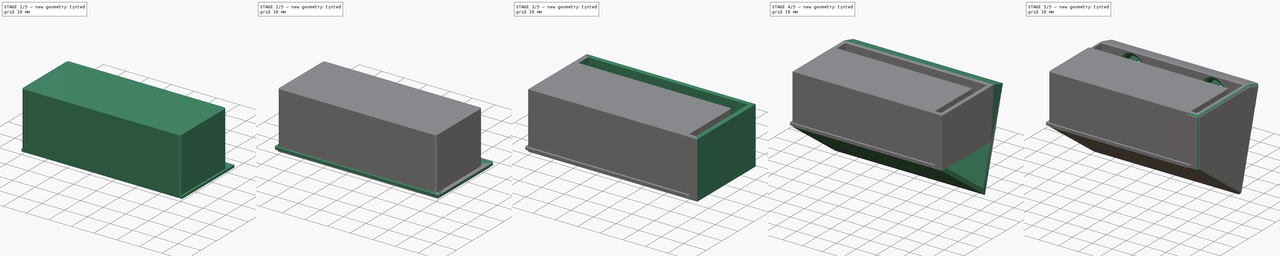
[diagram: build sequence overview — one tinted view per stage of 5, left to right]
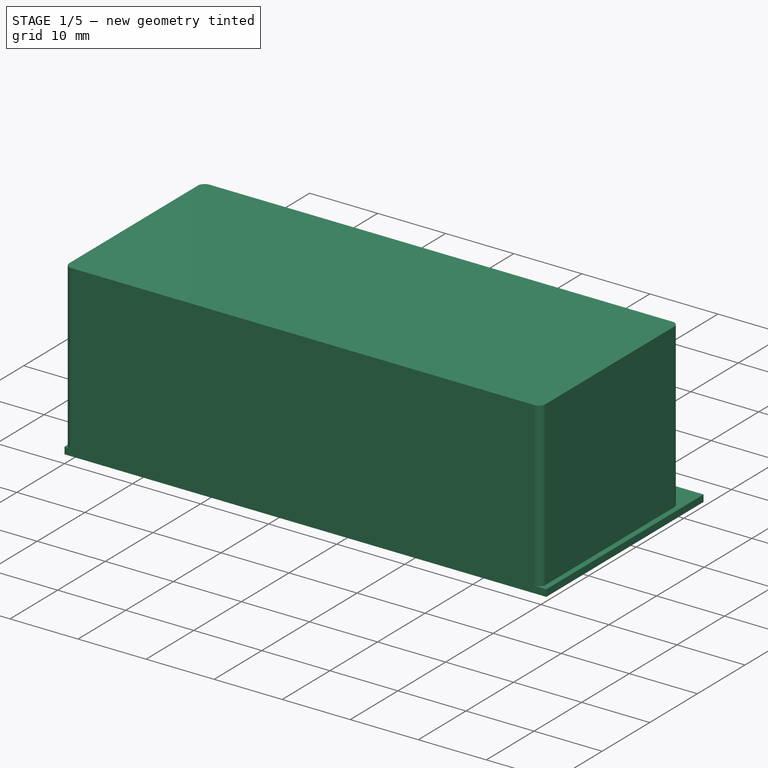
[diagram: stage 1 of 5 — iso view after this stage's code; geometry added in this stage tinted green]
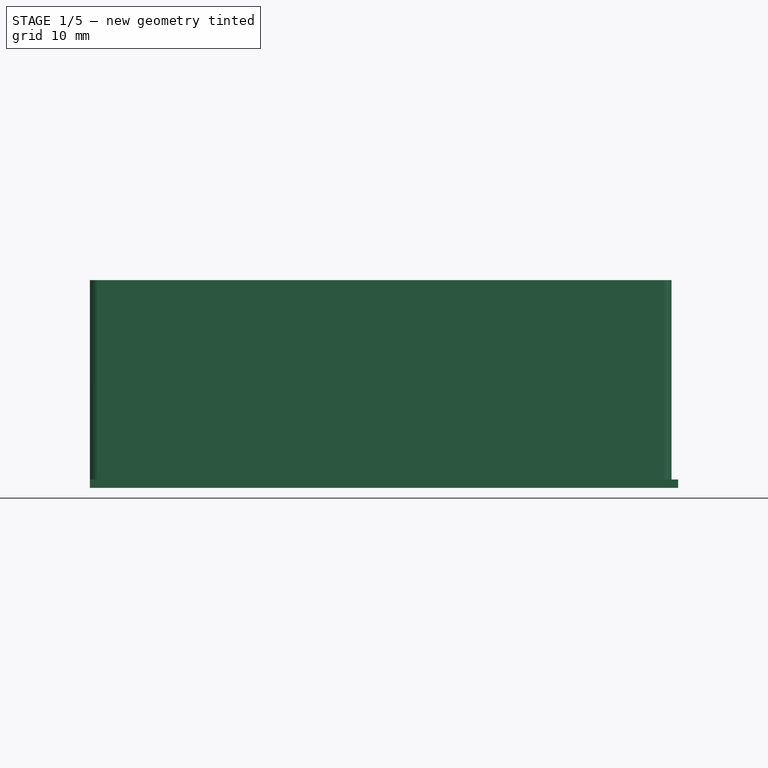
[diagram: stage 1 of 5 — front view after this stage's code; geometry added in this stage tinted green]
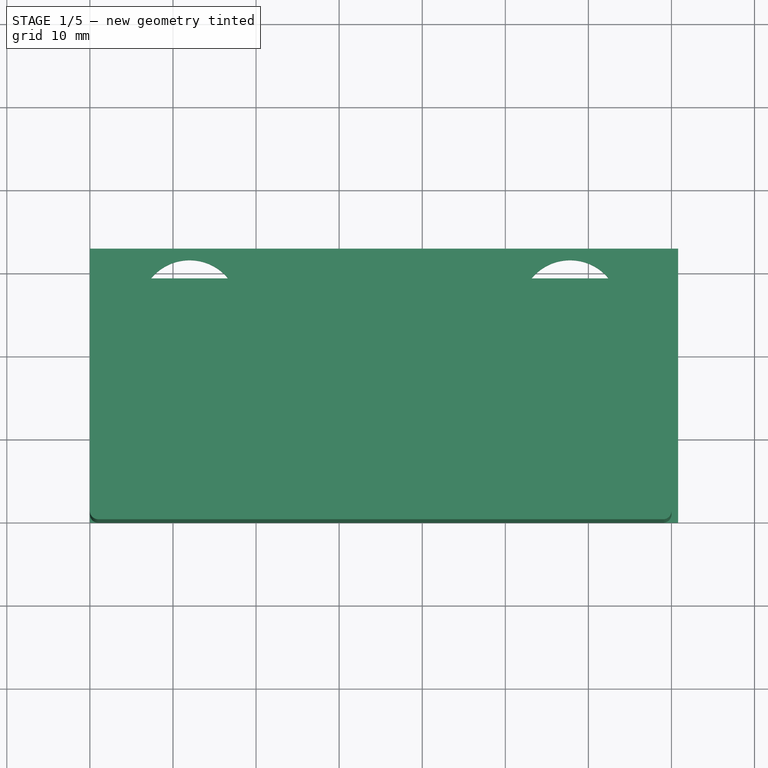
[diagram: stage 1 of 5 — top view after this stage's code; geometry added in this stage tinted green]
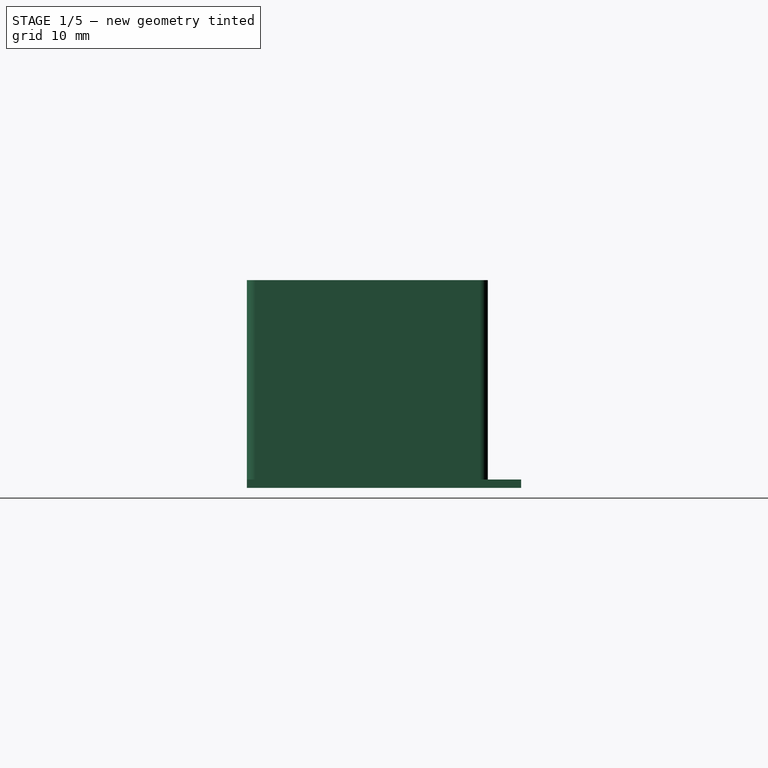
[diagram: stage 1 of 5 — right view after this stage's code; geometry added in this stage tinted green]
FCSTD DOCUMENT  (FreeCAD 1.1R42180 (Git))
Label: Panel
License: All rights reserved
LicenseURL: https://en.wikipedia.org/wiki/All_rights_reserved
objects: Sketcher::SketchObject×9, PartDesign::Pad×8, PartDesign::Chamfer×5, App::Point×4, PartDesign::Pocket×4, PartDesign::Body×3, PartDesign::Fillet×2, App::VarSet×1, Image::ImagePlane×1, App::Part×1
note: 78 computed .brp shape members not serialized (recipe doc carries the construction recipe); baked Part::Feature solids carry a one-line shape summary decoded from their .brp

FEATURE [App::Point] Origin005
  Role = Origin
FEATURE [Sketcher::SketchObject] Sketch005
  ArcFitTolerance = 1e-06
  AttachmentSupport = -> [Origin004]
  ExternalTypes = [0]
  FullyConstrained = true
  MakeInternals = false
  MapMode = 5
  sketch-geometry (11):
    g0: LineSegment StartX=0 StartY=33 StartZ=0 EndX=0 EndY=0 EndZ=0
    g1: LineSegment StartX=0 StartY=0 StartZ=0 EndX=70.8 EndY=0 EndZ=0
    g2: LineSegment StartX=70.8 StartY=0 StartZ=0 EndX=70.8 EndY=33 EndZ=0
    g3: LineSegment StartX=70.8 StartY=33 StartZ=0 EndX=0 EndY=33 EndZ=0
    g4: Circle CenterX=12 CenterY=25.6 CenterZ=0 NormalX=0 NormalY=0 NormalZ=1 AngleXU=0 Radius=6
    g5: Circle CenterX=57.8 CenterY=25.6 CenterZ=0 NormalX=0 NormalY=0 NormalZ=1 AngleXU=0 Radius=6
    g6: Circle CenterX=57.8 CenterY=7.3 CenterZ=0 NormalX=0 NormalY=0 NormalZ=1 AngleXU=0 Radius=6
    g7: LineSegment StartX=23 StartY=25.5 StartZ=0 EndX=23 EndY=11 EndZ=0
    g8: LineSegment StartX=23 StartY=11 StartZ=0 EndX=46.8 EndY=11 EndZ=0
    g9: LineSegment StartX=46.8 StartY=11 StartZ=0 EndX=46.8 EndY=25.5 EndZ=0
    g10: LineSegment StartX=46.8 StartY=25.5 StartZ=0 EndX=23 EndY=25.5 EndZ=0
  constraints (32):
    c: Coincident(g0,g1)
    c: Coincident(g1,g2)
    c: Coincident(g2,g3)
    c: Coincident(g3,g0)
    c: Vertical(g0)
    c: Vertical(g2)
    c: Horizontal(g1)
    c: Horizontal(g3)
    c: DistanceX(g3,g3) = 70.8
    c: DistanceY(g0,g0) = 33
    c: Coincident(g7,g8)
    c: Coincident(g8,g9)
    c: Coincident(g9,g10)
    c: Coincident(g10,g7)
    c: Vertical(g7)
    c: Vertical(g9)
    c: Horizontal(g8)
    c: Horizontal(g10)
    c: Diameter(g4) = 12
    c: Equal(g4,g5)
    c: Equal(g5,g6)
    c: Horizontal(g4,g5)
    c: Vertical(g5,g6)
    c: Distance(g4,g0) = 6
    c: Distance(g5,g2) = 7
    c: Distance(g5,g3) = 1.4
    c: Distance(g6,g1) = 1.3
    c: Distance(g3,g10) = 7.5
    c: Distance(g1,g8) = 11
    c: Distance(g2,g9) = 24
    c: Distance(g0,g7) = 23
    c: Coincident(g0,g-1)
FEATURE [PartDesign::Pad] Pad004
  Direction = (0,0,1)
  Length = 1
  Length2 = 10
  Profile = -> Sketch005
  ReferenceAxis = -> Sketch005 [N_Axis]
  Refine = true
  Suppressed = false
  Type = 0
FEATURE [PartDesign::Body] Body001  label="Toppdeksel"
  AllowCompound = true
  Group = -> [Sketch005,Pad004,Sketch007,Pad006,Pocket002,Chamfer002,Chamfer003,Fillet001,Chamfer004]
  Origin = -> Origin004
  Tip = -> Chamfer004
FEATURE [App::Point] Origin007
  Role = Origin
FEATURE [Sketcher::SketchObject] Sketch008
  ArcFitTolerance = 1e-06
  AttachmentSupport = -> [Origin006]
  ExternalTypes = [0]
  FullyConstrained = false
  MakeInternals = false
  MapMode = 5
  sketch-geometry (16):
    g0: LineSegment StartX=1 StartY=5.385e-13 StartZ=0 EndX=69 EndY=5.385e-13 EndZ=0
    g1: LineSegment StartX=70 StartY=1 StartZ=0 EndX=70 EndY=28 EndZ=0
    g2: LineSegment StartX=69 StartY=29 StartZ=0 EndX=1 EndY=29 EndZ=0
    g3: LineSegment StartX=5.385e-13 StartY=28 StartZ=0 EndX=5.385e-13 EndY=1 EndZ=0
    g4: ArcOfCircle CenterX=1 CenterY=28 CenterZ=0 NormalX=0 NormalY=0 NormalZ=1 AngleXU=0 Radius=1 StartAngle=1.5708 EndAngle=3.14159
    g5: GeomPoint [constr] X=0 Y=29 Z=0
    g6: ArcOfCircle CenterX=69 CenterY=28 CenterZ=0 NormalX=0 NormalY=0 NormalZ=1 AngleXU=0 Radius=1 StartAngle=-6.29523e-11 EndAngle=1.5708
    g7: GeomPoint [constr] X=70 Y=29 Z=0
    g8: ArcOfCircle CenterX=69 CenterY=1 CenterZ=0 NormalX=0 NormalY=0 NormalZ=1 AngleXU=0 Radius=1 StartAngle=4.71239 EndAngle=6.28319
    g9: GeomPoint [constr] X=70 Y=0 Z=0
    g10: ArcOfCircle CenterX=1 CenterY=1 CenterZ=0 NormalX=0 NormalY=0 NormalZ=1 AngleXU=0 Radius=1 StartAngle=3.14159 EndAngle=4.71239
    g11: GeomPoint [constr] X=0 Y=0 Z=0
    g12: LineSegment StartX=1.2 StartY=1.2 StartZ=0 EndX=68.8 EndY=1.2 EndZ=0
    g13: LineSegment StartX=68.8 StartY=1.2 StartZ=0 EndX=68.8 EndY=27.8 EndZ=0
    g14: LineSegment StartX=68.8 StartY=27.8 StartZ=0 EndX=1.2 EndY=27.8 EndZ=0
    g15: LineSegment StartX=1.2 StartY=27.8 StartZ=0 EndX=1.2 EndY=1.2 EndZ=0
  constraints (31):
    c: Horizontal(g0)
    c: Horizontal(g2)
    c: Vertical(g1)
    c: Vertical(g3)
    c: Distance(g9,g11) = 70
    c: Distance(g11,g5) = 29
    c: Coincident(g11,g-1)
    c: PointOnObject(g5,g3)
    c: PointOnObject(g5,g2)
    c: Tangent(g3,g4) = -1.5708
    c: Tangent(g2,g4) = -1.5708
    c: PointOnObject(g7,g2)
    c: PointOnObject(g7,g1)
    c: Tangent(g2,g6) = -1.5708
    c: Tangent(g1,g6) = -1.5708
    c: PointOnObject(g9,g1)
    c: PointOnObject(g9,g0)
    c: Tangent(g1,g8) = -1.5708
    c: Tangent(g0,g8) = -1.5708
    c: PointOnObject(g11,g0)
    c: PointOnObject(g11,g3)
    c: Tangent(g0,g10) = -1.5708
    c: Tangent(g3,g10) = -1.5708
    c: Radius(g4) = 1
    c: Equal(g4,g6)
    c: Equal(g6,g8)
    c: Equal(g8,g10)
    c: Coincident(g12,g13)
    c: Coincident(g12,g15)
    c: Coincident(g13,g14)
    c: Coincident(g14,g15)
FEATURE [PartDesign::Pad] Pad007
  Direction = (0,0,1)
  Length = 25
  Length2 = 10
  Profile = -> Sketch008
  ReferenceAxis = -> Sketch008 [N_Axis]
  Refine = true
  Suppressed = false
  Type = 0
FEATURE [PartDesign::Pad] Pad008
  BaseFeature = -> Pad007
  Direction = (0,0,1)
  Length = 1
  Length2 = 10
  Profile = -> Pad007 [Edge16,Edge22,Edge10,Edge13,Edge7,Edge4,Edge24,Edge19]
  Refine = true
  Reversed = true
  Suppressed = false
  Type = 0
FEATURE [Sketcher::SketchObject] Sketch009
  ArcFitTolerance = 1e-06
  AttachmentSupport = -> [Pad008]
  ExternalGeometry = -> [Pad008]
  ExternalTypes = [0,0,0]
  FullyConstrained = true
  MakeInternals = false
  MapMode = 5
  Placement = pos=(5.406e-13,0,0) rot=(0.57735,-0.57735,-0.57735;2.0944rad)
  sketch-geometry (4):
    g0: LineSegment StartX=-25 StartY=0 StartZ=0 EndX=-5 EndY=0 EndZ=0
    g1: LineSegment StartX=-5 StartY=0 StartZ=0 EndX=-5 EndY=20 EndZ=0
    g2: LineSegment StartX=-5 StartY=20 StartZ=0 EndX=-25 EndY=20 EndZ=0
    g3: LineSegment StartX=-25 StartY=20 StartZ=0 EndX=-25 EndY=0 EndZ=0
  constraints (12):
    c: Coincident(g0,g1)
    c: Coincident(g1,g2)
    c: Coincident(g2,g3)
    c: Coincident(g3,g0)
    c: Horizontal(g0)
    c: Horizontal(g2)
    c: Vertical(g1)
    c: Vertical(g3)
    c: PointOnObject(g0,g-1)
    c: Distance(g2,g-3) = 5
    c: Distance(g2,g-5) = 4
    c: Distance(g1,g-4) = 4
FEATURE [PartDesign::Pocket] Pocket003
  BaseFeature = -> Pad008
  Direction = (1,0,0)
  Length = 5
  Length2 = 5
  Profile = -> Sketch009
  ReferenceAxis = -> Sketch009 [N_Axis]
  Refine = true
  Suppressed = false
  Type = 0
FEATURE [PartDesign::Body] Body002  label="Bakdeksel"
  AllowCompound = false
  Group = -> [Sketch008,Pad007,Pad008,Sketch009,Pocket003]
  Origin = -> Origin006
  Tip = -> Pocket003
FEATURE [App::Part] Part
  Group = -> [Body001,Body002]
  Origin = -> Origin
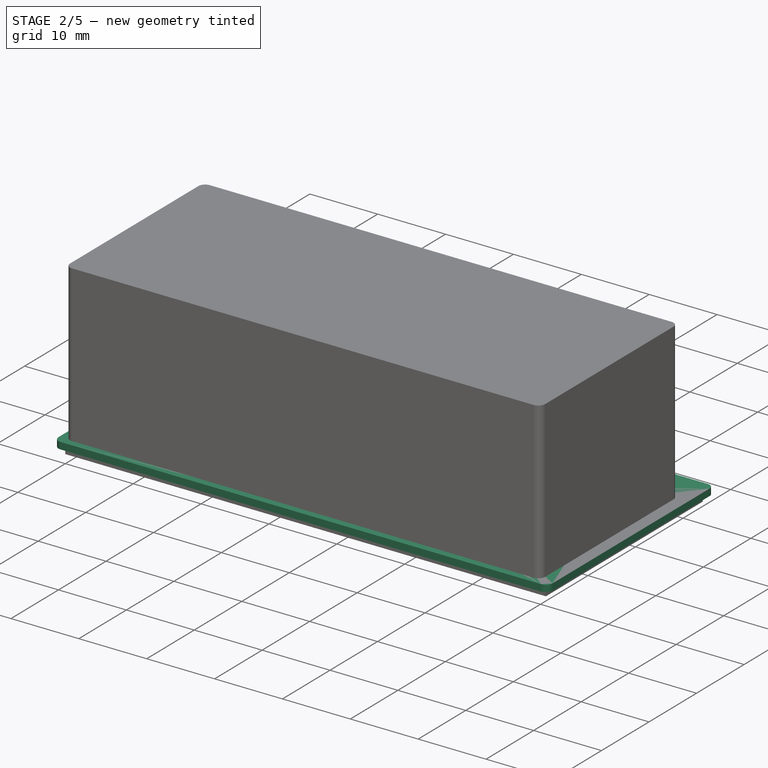
[diagram: stage 2 of 5 — iso view after this stage's code; geometry added in this stage tinted green]
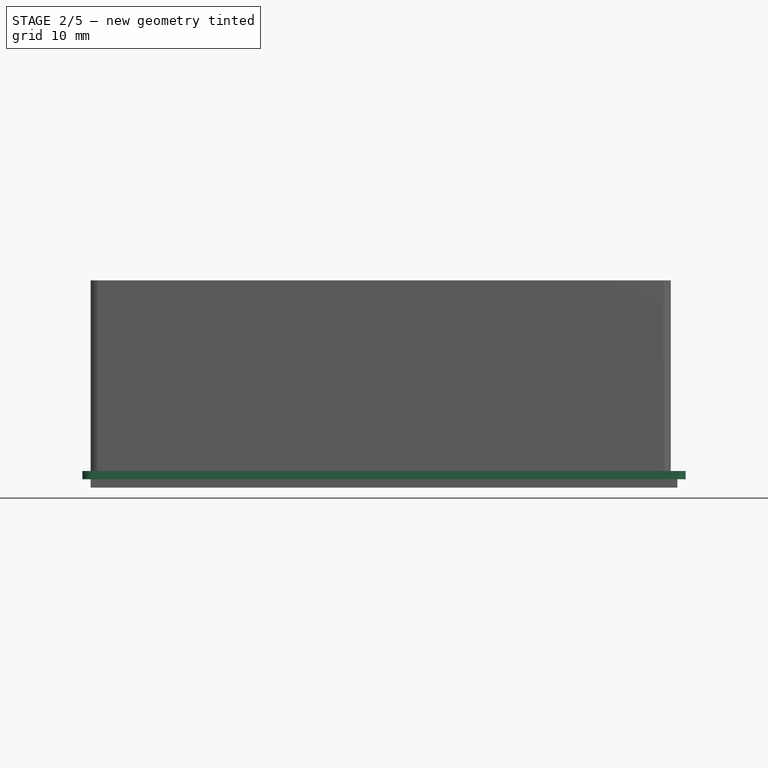
[diagram: stage 2 of 5 — front view after this stage's code; geometry added in this stage tinted green]
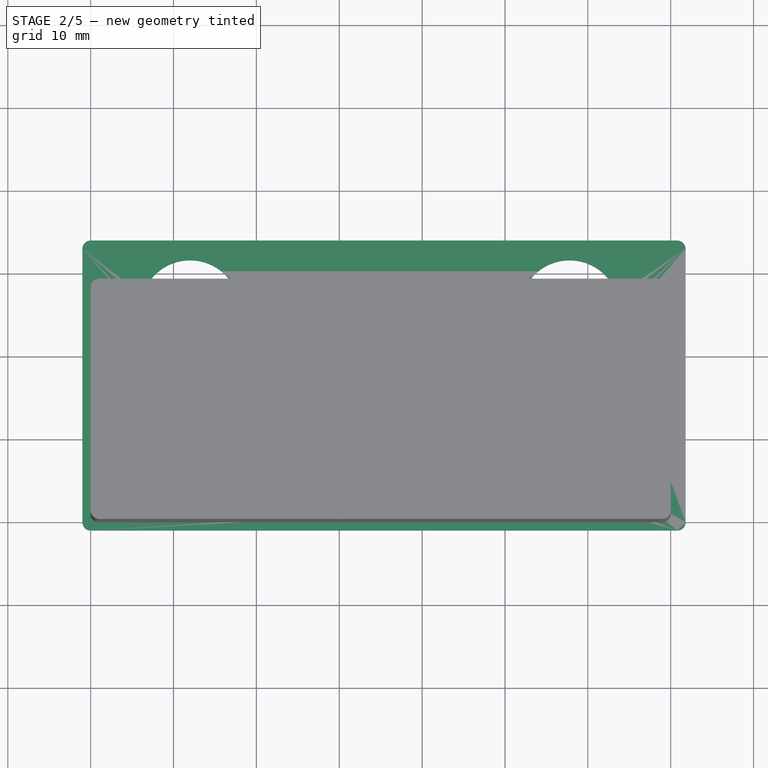
[diagram: stage 2 of 5 — top view after this stage's code; geometry added in this stage tinted green]
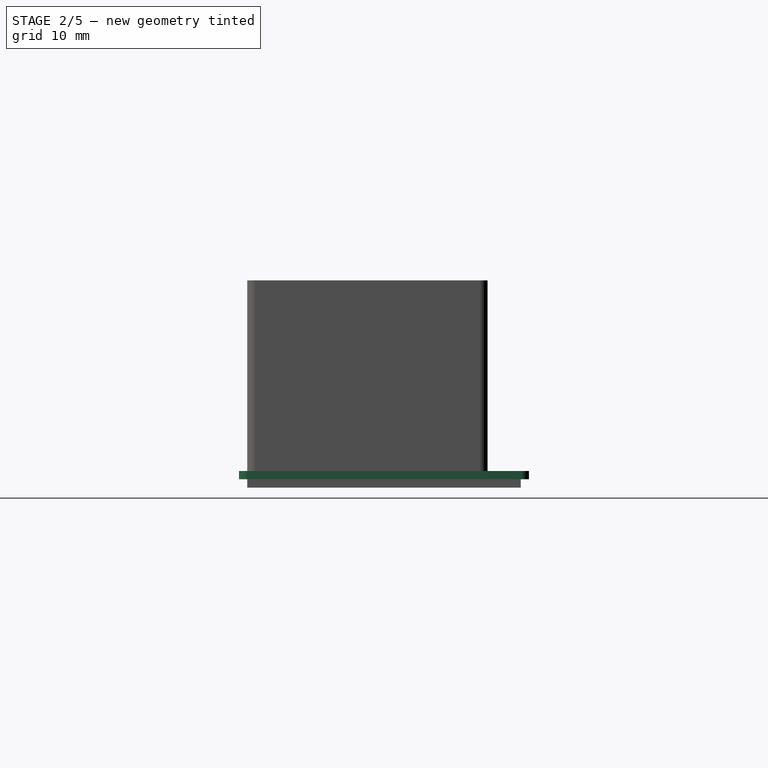
[diagram: stage 2 of 5 — right view after this stage's code; geometry added in this stage tinted green]
FEATURE [PartDesign::Body] Body  label="Frontmodul"
  AllowCompound = false
  Group = -> [Sketch,Sketch001,Pad,Pad001,Chamfer,Sketch002,Pad002,Sketch003,Pocket,Pocket001,Sketch006,Pad005,Fillet,Chamfer001]
  Origin = -> Origin002
  Tip = -> Chamfer001
FEATURE [Image::ImagePlane] IMG_20251203_094735
  Placement = pos=(37.6,13,0) rot=(0,0,1;0rad)
  XSize = 136.852
  YSize = 68.4259
FEATURE [Sketcher::SketchObject] Sketch007
  ArcFitTolerance = 1e-06
  AttachmentOffset = pos=(0,0,1) rot=(0,0,1;0rad)
  AttachmentSupport = -> [Origin004]
  ExternalTypes = [0]
  FullyConstrained = true
  MakeInternals = false
  MapMode = 5
  Placement = pos=(0,0,1) rot=(0,0,1;0rad)
  sketch-geometry (12):
    g0: LineSegment StartX=-1 StartY=33 StartZ=0 EndX=-1 EndY=0 EndZ=0
    g1: LineSegment StartX=-2e-16 StartY=-1 StartZ=0 EndX=70.8 EndY=-1 EndZ=0
    g2: LineSegment StartX=71.8 StartY=-2e-16 StartZ=0 EndX=71.8 EndY=33 EndZ=0
    g3: LineSegment StartX=70.8 StartY=34 StartZ=0 EndX=0 EndY=34 EndZ=0
    g4: ArcOfCircle CenterX=0 CenterY=0 CenterZ=0 NormalX=0 NormalY=0 NormalZ=1 AngleXU=0 Radius=1 StartAngle=3.14159 EndAngle=4.71239
    g5: GeomPoint [constr] X=-1 Y=-1 Z=0
    g6: ArcOfCircle CenterX=70.8 CenterY=0 CenterZ=0 NormalX=0 NormalY=0 NormalZ=1 AngleXU=0 Radius=1 StartAngle=4.71239 EndAngle=6.28319
    g7: GeomPoint [constr] X=71.8 Y=-1 Z=0
    g8: ArcOfCircle CenterX=70.8 CenterY=33 CenterZ=0 NormalX=0 NormalY=0 NormalZ=1 AngleXU=0 Radius=1 StartAngle=-9e-16 EndAngle=1.5708
    g9: GeomPoint [constr] X=71.8 Y=34 Z=0
    g10: ArcOfCircle CenterX=0 CenterY=33 CenterZ=0 NormalX=0 NormalY=0 NormalZ=1 AngleXU=0 Radius=1 StartAngle=1.5708 EndAngle=3.14159
    g11: GeomPoint [constr] X=-1 Y=34 Z=0
  constraints (28):
    c: Vertical(g0)
    c: Vertical(g2)
    c: Horizontal(g1)
    c: Horizontal(g3)
    c: PointOnObject(g5,g0)
    c: PointOnObject(g5,g1)
    c: Tangent(g0,g4) = -1.5708
    c: Tangent(g1,g4) = -1.5708
    c: PointOnObject(g7,g1)
    c: PointOnObject(g7,g2)
    c: Tangent(g1,g6) = -1.5708
    c: Tangent(g2,g6) = -1.5708
    c: PointOnObject(g9,g2)
    c: PointOnObject(g9,g3)
    c: Tangent(g2,g8) = -1.5708
    c: Tangent(g3,g8) = -1.5708
    c: PointOnObject(g11,g3)
    c: PointOnObject(g11,g0)
    c: Tangent(g3,g10) = -1.5708
    c: Tangent(g0,g10) = -1.5708
    c: Radius(g4) = 1
    c: Equal(g4,g6)
    c: Equal(g6,g8)
    c: Equal(g8,g10)
    c: DistanceY(g1,g-1) = 1
    c: DistanceX(g-5,g2) = 1
    c: DistanceY(g-6,g3) = 1
    c: DistanceX(g0,g-6) = 1
FEATURE [PartDesign::Pad] Pad006
  BaseFeature = -> Pad004
  Direction = (0,0,1)
  Length = 1
  Length2 = 0
  Profile = -> Sketch007
  ReferenceAxis = -> Sketch007 [N_Axis]
  Refine = true
  Suppressed = false
  Type = 0
FEATURE [PartDesign::Pocket] Pocket002
  BaseFeature = -> Pad006
  Direction = (0,0,-1)
  Length = 5
  Length2 = 5
  Profile = -> Sketch005 [Edge11,Edge8,Edge9,Edge10,Edge5,Edge7,Edge6]
  ReferenceAxis = -> Sketch005 [N_Axis]
  Refine = true
  Reversed = true
  Suppressed = false
  Type = 1
FEATURE [PartDesign::Chamfer] Chamfer002
  Angle = 45
  Base = -> Pocket002 [Edge18,Edge17,Edge16]
  BaseFeature = -> Pocket002
  ChamferType = 1
  FlipDirection = false
  Refine = true
  Size = 1
  Size2 = 1.5
  SupportTransform = false
  Suppressed = false
  UseAllEdges = false
FEATURE [PartDesign::Chamfer] Chamfer003
  Angle = 45
  Base = -> Chamfer002 [Edge23,Edge29,Edge27,Edge25]
  BaseFeature = -> Chamfer002
  ChamferType = 1
  FlipDirection = false
  Refine = true
  Size = 1.5
  Size2 = 1
  SupportTransform = false
  Suppressed = false
  UseAllEdges = false
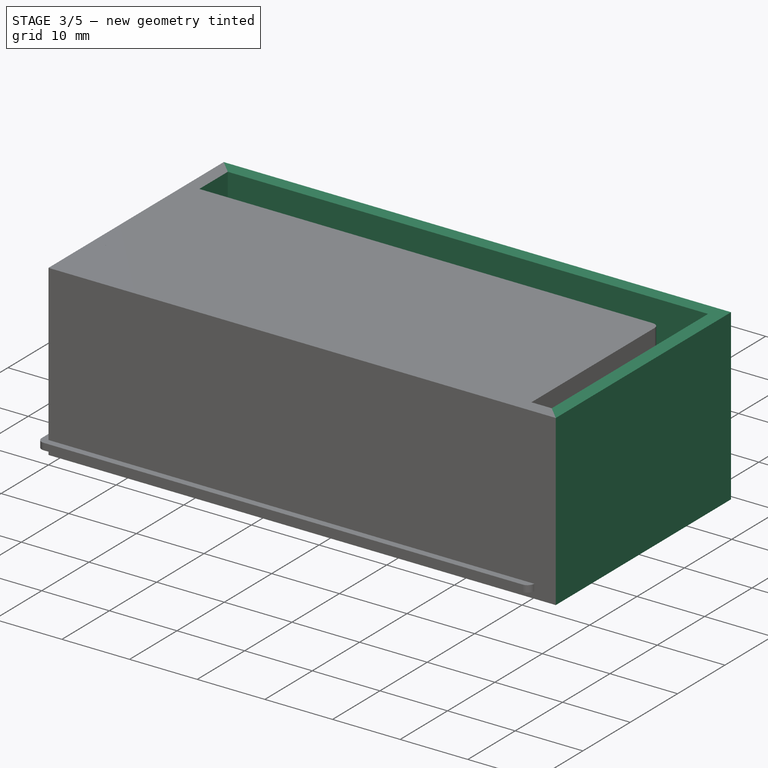
[diagram: stage 3 of 5 — iso view after this stage's code; geometry added in this stage tinted green]
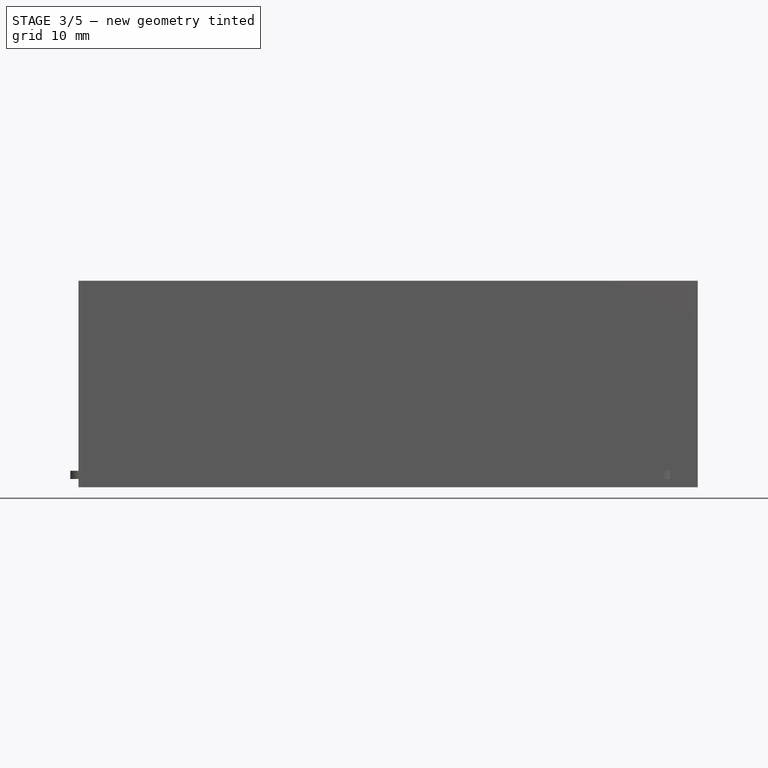
[diagram: stage 3 of 5 — front view after this stage's code; geometry added in this stage tinted green]
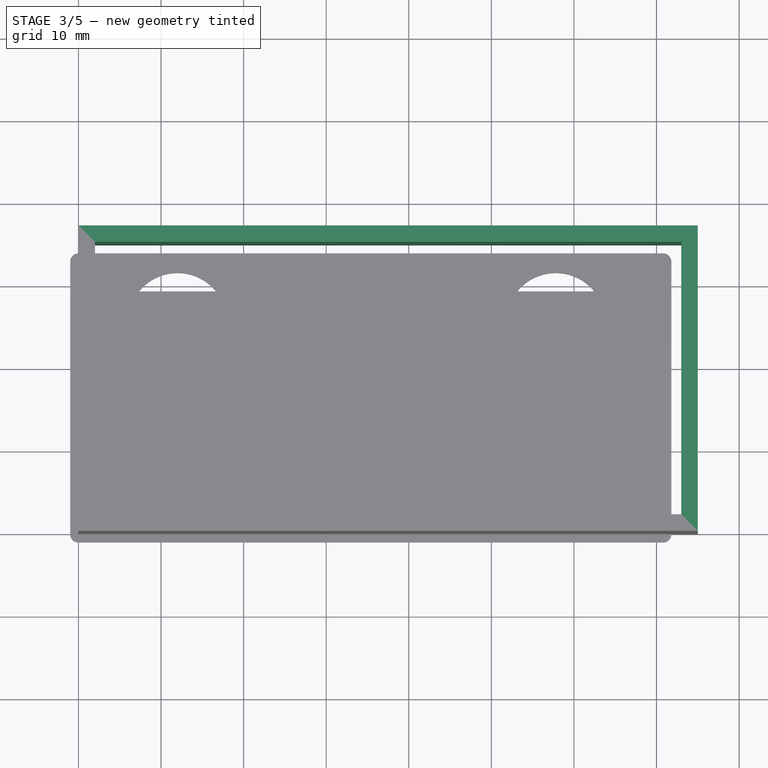
[diagram: stage 3 of 5 — top view after this stage's code; geometry added in this stage tinted green]
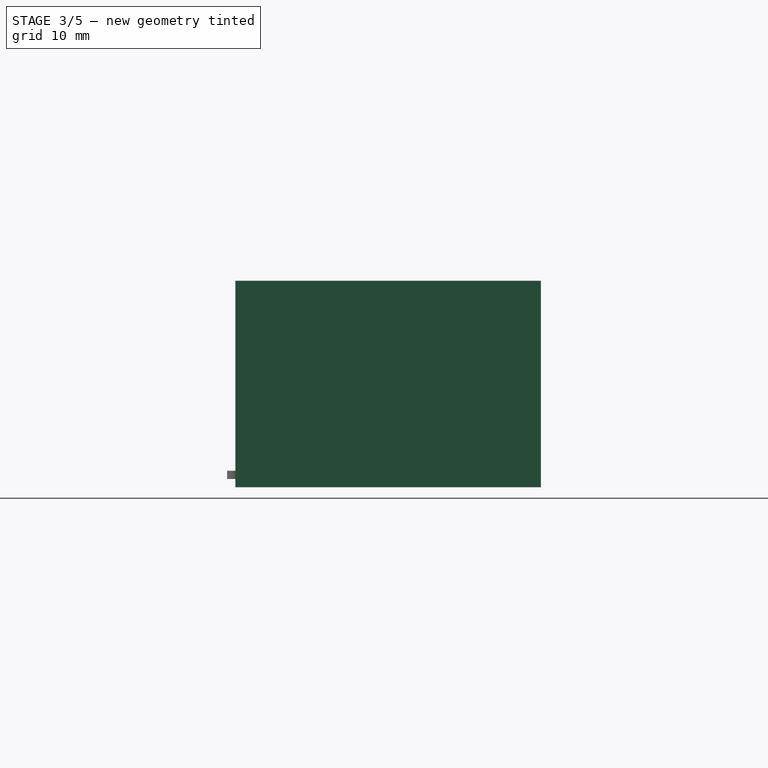
[diagram: stage 3 of 5 — right view after this stage's code; geometry added in this stage tinted green]
FEATURE [App::Point] Origin001
  Role = Origin
FEATURE [App::Point] Origin003
  Role = Origin
FEATURE [Sketcher::SketchObject] Sketch  label="Vegger"
  ArcFitTolerance = 1e-06
  AttachmentSupport = -> [Origin002]
  ExternalTypes = [0]
  FullyConstrained = true
  MakeInternals = false
  MapMode = 5
  expr: Constraints[19] = <<Var>>.Base_veggtykkelse
  expr: Constraints[20] = <<Var>>.Base_veggtykkelse
  expr: Constraints[21] = <<Var>>.Base_veggtykkelse
  expr: Constraints[22] = <<Var>>.Base_veggtykkelse
  sketch-geometry (8):
    g0: LineSegment StartX=0 StartY=0 StartZ=0 EndX=75 EndY=0 EndZ=0
    g1: LineSegment StartX=75 StartY=0 StartZ=0 EndX=75 EndY=37 EndZ=0
    g2: LineSegment StartX=75 StartY=37 StartZ=0 EndX=0 EndY=37 EndZ=0
    g3: LineSegment StartX=0 StartY=37 StartZ=0 EndX=0 EndY=0 EndZ=0
    g4: LineSegment StartX=2 StartY=2 StartZ=0 EndX=73 EndY=2 EndZ=0
    g5: LineSegment StartX=73 StartY=2 StartZ=0 EndX=73 EndY=35 EndZ=0
    g6: LineSegment StartX=73 StartY=35 StartZ=0 EndX=2 EndY=35 EndZ=0
    g7: LineSegment StartX=2 StartY=35 StartZ=0 EndX=2 EndY=2 EndZ=0
  constraints (23):
    c: Coincident(g0,g1)
    c: Coincident(g1,g2)
    c: Coincident(g2,g3)
    c: Coincident(g3,g0)
    c: Horizontal(g0)
    c: Horizontal(g2)
    c: Vertical(g1)
    c: Vertical(g3)
    c: Coincident(g0,g-1)
    c: Coincident(g4,g5)
    c: Coincident(g5,g6)
    c: Coincident(g6,g7)
    c: Coincident(g7,g4)
    c: Horizontal(g4)
    c: Horizontal(g6)
    c: Vertical(g5)
    c: Vertical(g7)
    c: DistanceX(g6,g6) = 71
    c: DistanceY(g7,g7) = 33
    c: Distance(g4,g0) = 2
    c: Distance(g4,g3) = 2
    c: Distance(g6,g2) = 2
    c: DistanceX(g4,g0) = 2
FEATURE [App::VarSet] VarSet  label="Var"
  Base_veggtykkelse = 2
FEATURE [Sketcher::SketchObject] Sketch001  label="PCB-støtte"
  ArcFitTolerance = 1e-06
  AttachmentSupport = -> [Origin002]
  ExternalGeometry = -> [Sketch]
  ExternalTypes = [0,0,0,0]
  FullyConstrained = true
  MakeInternals = false
  MapMode = 5
  sketch-geometry (8):
    g0: LineSegment StartX=2 StartY=35 StartZ=0 EndX=2 EndY=2 EndZ=0
    g1: LineSegment StartX=2 StartY=2 StartZ=0 EndX=7 EndY=2 EndZ=0
    g2: LineSegment StartX=7 StartY=2 StartZ=0 EndX=7 EndY=35 EndZ=0
    g3: LineSegment StartX=7 StartY=35 StartZ=0 EndX=2 EndY=35 EndZ=0
    g4: LineSegment StartX=73 StartY=35 StartZ=0 EndX=68 EndY=35 EndZ=0
    g5: LineSegment StartX=68 StartY=35 StartZ=0 EndX=68 EndY=2 EndZ=0
    g6: LineSegment StartX=68 StartY=2 StartZ=0 EndX=73 EndY=2 EndZ=0
    g7: LineSegment StartX=73 StartY=2 StartZ=0 EndX=73 EndY=35 EndZ=0
  constraints (22):
    c: Coincident(g0,g1)
    c: Coincident(g1,g2)
    c: Coincident(g2,g3)
    c: Coincident(g3,g0)
    c: Vertical(g0)
    c: Vertical(g2)
    c: Horizontal(g1)
    c: Horizontal(g3)
    c: Coincident(g0,g-5)
    c: PointOnObject(g1,g-6)
    c: Coincident(g4,g5)
    c: Coincident(g5,g6)
    c: Coincident(g6,g7)
    c: Coincident(g7,g4)
    c: Horizontal(g4)
    c: Horizontal(g6)
    c: Vertical(g5)
    c: Vertical(g7)
    c: Coincident(g4,g-4)
    c: PointOnObject(g5,g-6)
    c: DistanceX(g3,g3) = 5
    c: DistanceX(g4,g4) = 5
FEATURE [PartDesign::Pad] Pad
  Direction = (0,0,1)
  Length = 25
  Length2 = 10
  Profile = -> Sketch
  ReferenceAxis = -> Sketch [N_Axis]
  Refine = true
  Suppressed = false
  Type = 0
FEATURE [PartDesign::Fillet] Fillet001
  Base = -> Chamfer003 [Edge46,Edge41,Edge42,Edge44]
  BaseFeature = -> Chamfer003
  Radius = 1
  Refine = true
  SupportTransform = false
  Suppressed = false
  UseAllEdges = false
FEATURE [PartDesign::Chamfer] Chamfer004
  Angle = 45
  Base = -> Fillet001 [Edge4,Edge6,Edge8,Edge7,Edge5,Edge1,Edge3,Edge2]
  BaseFeature = -> Fillet001
  ChamferType = 0
  FlipDirection = false
  Refine = true
  Size = 0.3
  Size2 = 1
  SupportTransform = false
  Suppressed = false
  UseAllEdges = false
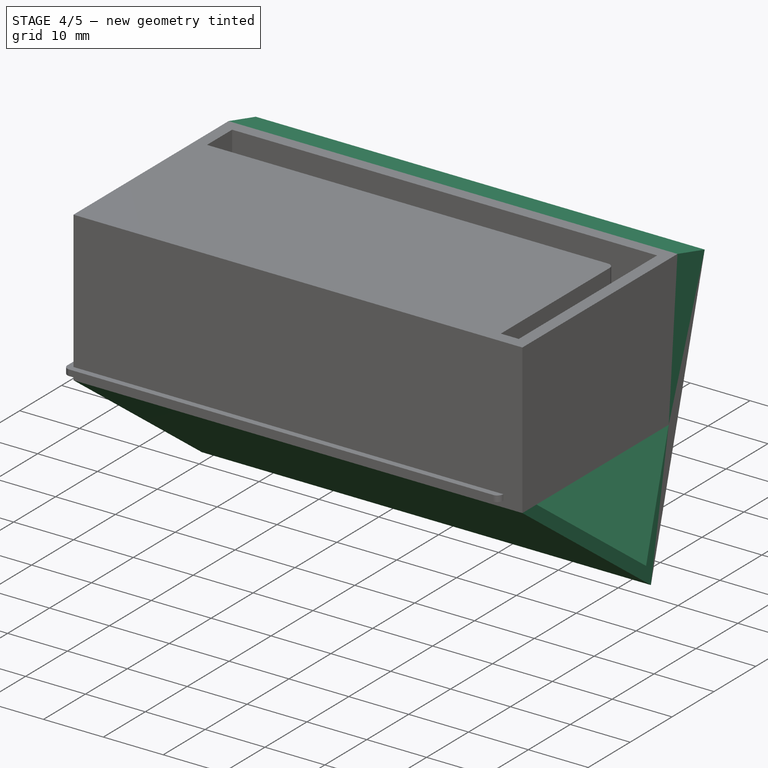
[diagram: stage 4 of 5 — iso view after this stage's code; geometry added in this stage tinted green]
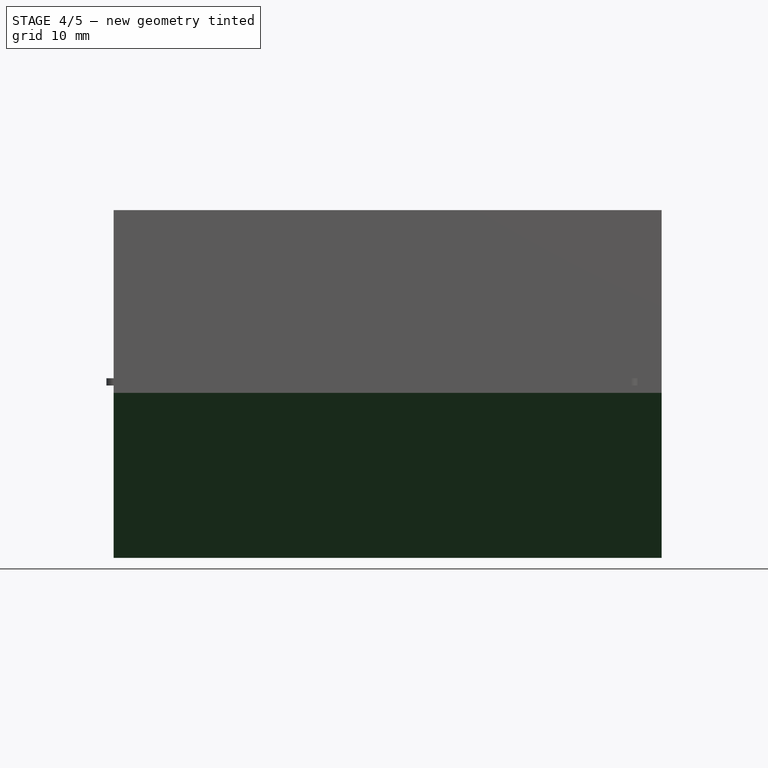
[diagram: stage 4 of 5 — front view after this stage's code; geometry added in this stage tinted green]
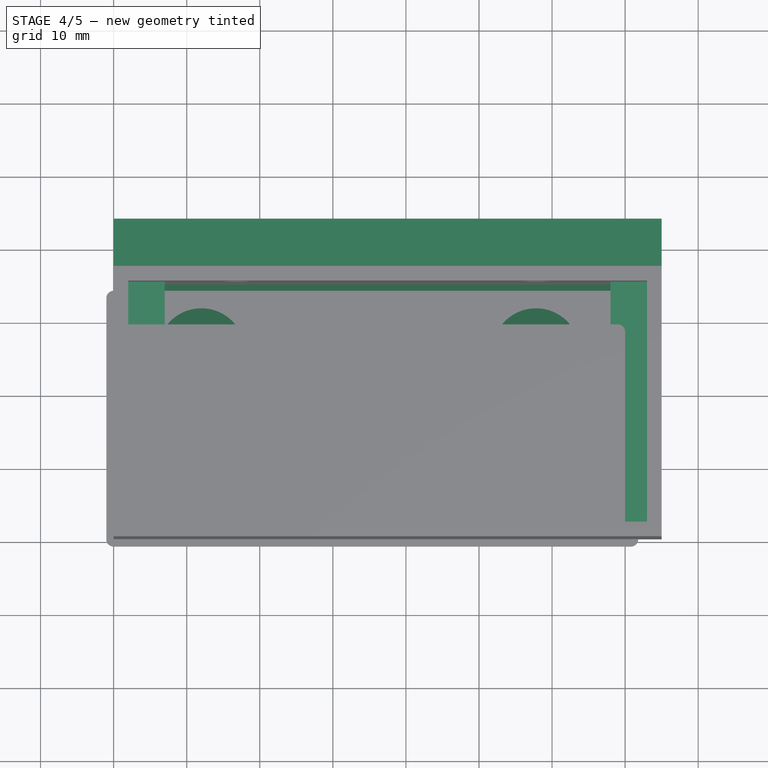
[diagram: stage 4 of 5 — top view after this stage's code; geometry added in this stage tinted green]
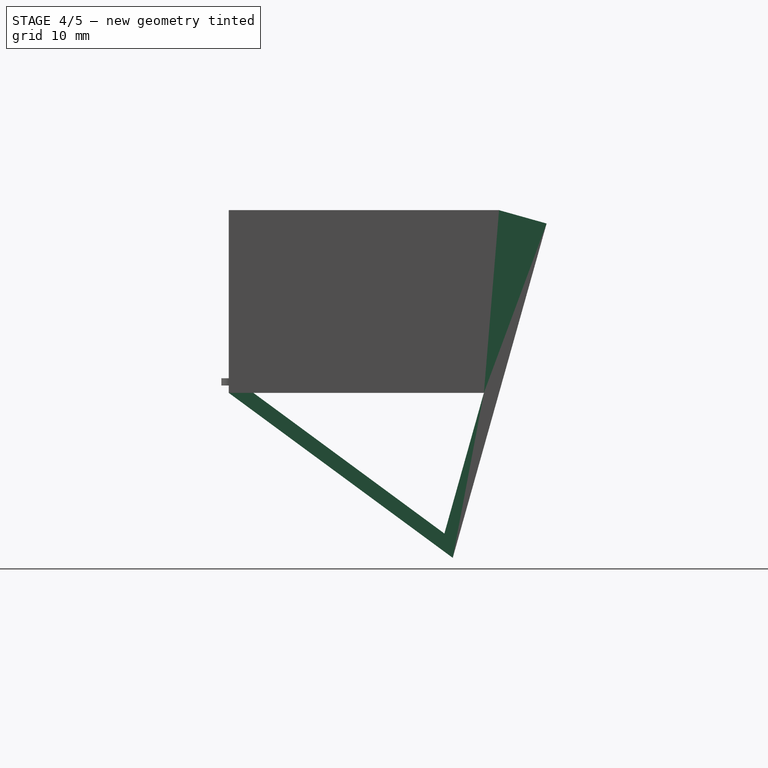
[diagram: stage 4 of 5 — right view after this stage's code; geometry added in this stage tinted green]
FEATURE [PartDesign::Pad] Pad001
  BaseFeature = -> Pad
  Direction = (0,0,1)
  Length = 15
  Length2 = -7
  Profile = -> Sketch001
  ReferenceAxis = -> Sketch001 [N_Axis]
  Refine = true
  Suppressed = false
  Type = 4
FEATURE [PartDesign::Chamfer] Chamfer
  Angle = 45
  Base = -> Pad001 [Edge32,Edge42]
  BaseFeature = -> Pad001
  ChamferType = 0
  FlipDirection = false
  Refine = true
  Size = 4.99
  Size2 = 1
  SupportTransform = false
  Suppressed = false
  UseAllEdges = false
FEATURE [Sketcher::SketchObject] Sketch002  label="Feste"
  ArcFitTolerance = 1e-06
  AttachmentSupport = -> [Origin002]
  ExternalGeometry = -> [Chamfer]
  ExternalTypes = [0]
  FullyConstrained = true
  MakeInternals = false
  MapMode = 5
  Placement = pos=(0,0,0) rot=(0.57735,0.57735,0.57735;2.0944rad)
  expr: Constraints[10] = <<Var>>.Base_veggtykkelse
  sketch-geometry (9):
    g0: LineSegment StartX=37 StartY=25 StartZ=0 EndX=43.5053 EndY=23.1738 EndZ=0
    g1: LineSegment StartX=43.5053 StartY=23.1738 StartZ=0 EndX=30.6609 EndY=-22.5819 EndZ=0
    g2: LineSegment StartX=0 StartY=0 StartZ=0 EndX=30.6609 EndY=-22.5819 EndZ=0
    g3: LineSegment StartX=29.5173 StartY=-19.2557 StartZ=0 EndX=3.37255 EndY=0 EndZ=0
    g4: LineSegment StartX=3.37255 StartY=0 StartZ=0 EndX=0 EndY=0 EndZ=0
    g5: LineSegment StartX=37 StartY=25 StartZ=0 EndX=34.9227 EndY=0 EndZ=0
    g6: LineSegment StartX=34.9227 StartY=0 StartZ=0 EndX=29.5173 EndY=-19.2557 EndZ=0
    g7: GeomPoint [constr] X=40.8026 Y=13.546 Z=0
    g8: LineSegment [constr] StartX=40.8026 StartY=13.546 StartZ=0 EndX=-15.7995 EndY=29.4352 EndZ=0
  constraints (24):
    c: Coincident(g0,g-6)
    c: Coincident(g1,g0)
    c: PointOnObject(g-5,g1)
    c: Perpendicular(g1,g0)
    c: Coincident(g2,g-1)
    c: Coincident(g2,g1)
    c: PointOnObject(g3,g-5)
    c: Coincident(g4,g3)
    c: Coincident(g4,g2)
    c: Parallel(g3,g2)
    c: Distance(g3,g1) = 2
    c: Distance(g3,g2) = 2
    c: Coincident(g5,g0)
    c: PointOnObject(g5,g-5)
    c: Coincident(g6,g5)
    c: Coincident(g6,g3)
    c: Parallel(g6,g1)
    c: PointOnObject(g7,g1)
    c: Coincident(g8,g7)
    c: Perpendicular(g1,g8)
    c: Distance(g7,g0) = 10
    c: PointOnObject(g-6,g8)
    c: Distance(g6,g6) = 20
    c: Distance(g8,g8) = 58.79
FEATURE [PartDesign::Pad] Pad002
  BaseFeature = -> Chamfer
  Direction = (1,0,0)
  Length = 75
  Length2 = 10
  Profile = -> Sketch002
  ReferenceAxis = -> Sketch002 [N_Axis]
  Refine = true
  Suppressed = false
  Type = 0
  expr: Length = 71 mm + <<Var>>.Base_veggtykkelse * 2
FEATURE [Sketcher::SketchObject] Sketch003  label="Skruehull"
  ArcFitTolerance = 1e-06
  AttachmentSupport = -> [Pad002]
  ExternalGeometry = -> [Pad002]
  ExternalTypes = [0]
  FullyConstrained = false
  MakeInternals = false
  MapMode = 5
  Placement = pos=(0,34.2973,-9.62784) rot=(0,0.796954,0.60404;3.14159rad)
  sketch-geometry (8):
    g0: Circle CenterX=-58 CenterY=27.0696 CenterZ=0 NormalX=0 NormalY=0 NormalZ=1 AngleXU=0 Radius=2
    g1: Circle CenterX=-17 CenterY=27.0696 CenterZ=0 NormalX=0 NormalY=0 NormalZ=1 AngleXU=0 Radius=2
    g2: Circle CenterX=-58 CenterY=-8.36809 CenterZ=0 NormalX=0 NormalY=0 NormalZ=1 AngleXU=0 Radius=2
    g3: Circle CenterX=-17 CenterY=-8.36809 CenterZ=0 NormalX=0 NormalY=0 NormalZ=1 AngleXU=0 Radius=2
    g4: Circle CenterX=-58 CenterY=27.0696 CenterZ=0 NormalX=0 NormalY=0 NormalZ=1 AngleXU=0 Radius=5
    g5: Circle CenterX=-17 CenterY=27.0696 CenterZ=0 NormalX=0 NormalY=0 NormalZ=1 AngleXU=0 Radius=5
    g6: Circle CenterX=-17 CenterY=-8.36809 CenterZ=0 NormalX=0 NormalY=0 NormalZ=1 AngleXU=0 Radius=5
    g7: Circle CenterX=-58 CenterY=-8.36809 CenterZ=0 NormalX=0 NormalY=0 NormalZ=1 AngleXU=0 Radius=5
  constraints (19):
    c: Diameter(g0) = 4
    c: Horizontal(g0,g1)
    c: Horizontal(g3,g2)
    c: Vertical(g2,g0)
    c: Vertical(g1,g3)
    c: Equal(g0,g1)
    c: Equal(g1,g3)
    c: Equal(g3,g2)
    c: Distance(g1,g-2) = 17
    c: Distance(g0,g-5) = 17
    c: Coincident(g4,g0)
    c: Coincident(g6,g3)
    c: Coincident(g7,g2)
    c: Diameter(g4) = 10
    c: Equal(g4,g5)
    c: Equal(g5,g6)
    c: Equal(g6,g7)
    c: Coincident(g5,g1)
    c: Distance(g0,g-4) = 7
FEATURE [PartDesign::Pocket] Pocket
  BaseFeature = -> Pad002
  Direction = (0,-0.962784,0.27027)
  Length = 67
  Length2 = 5
  Profile = -> Sketch003 [Edge1,Edge2]
  ReferenceAxis = -> Sketch003 [N_Axis]
  Refine = true
  Suppressed = false
  Type = 0
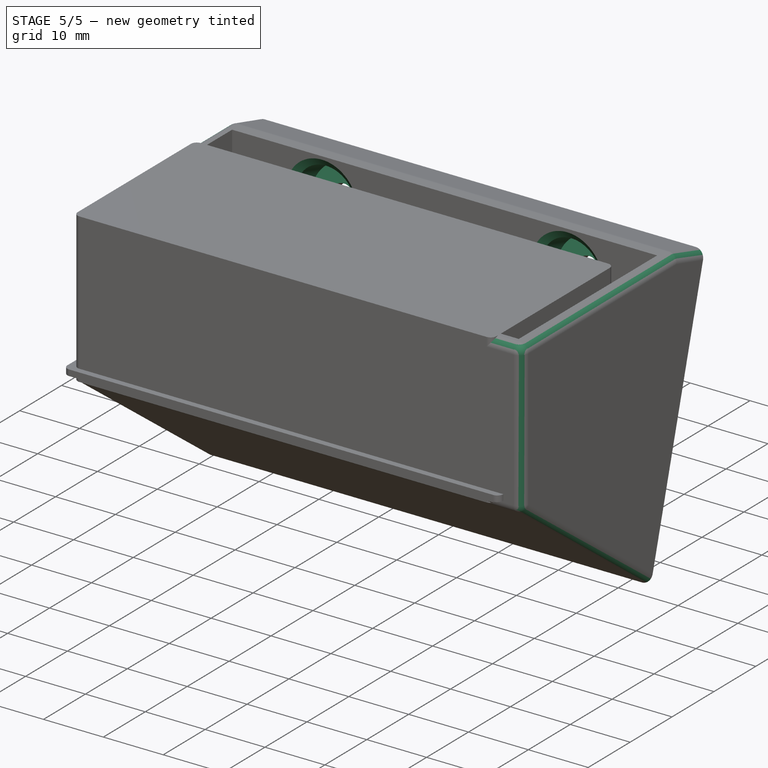
[diagram: stage 5 of 5 — iso view after this stage's code; geometry added in this stage tinted green]
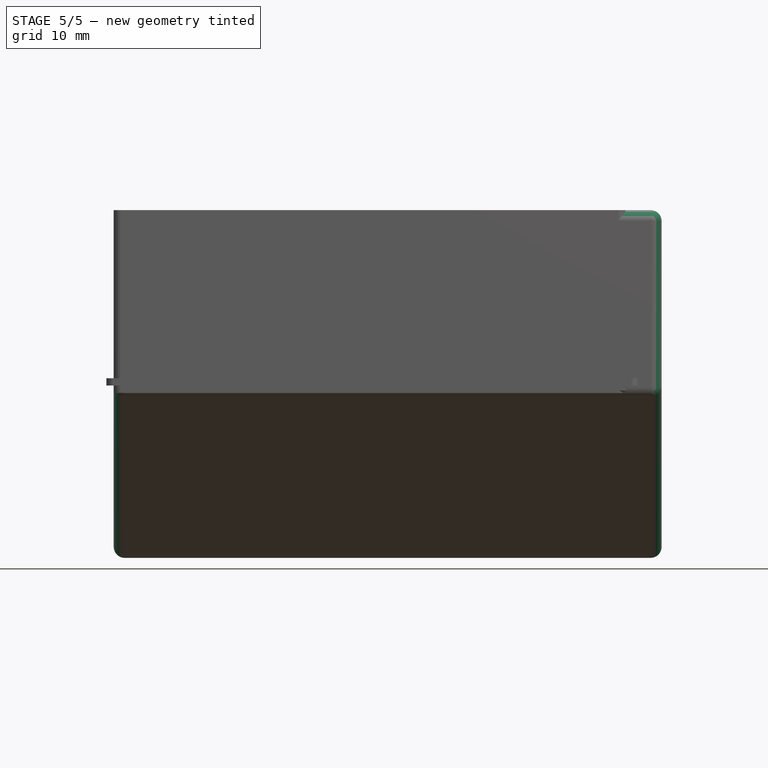
[diagram: stage 5 of 5 — front view after this stage's code; geometry added in this stage tinted green]
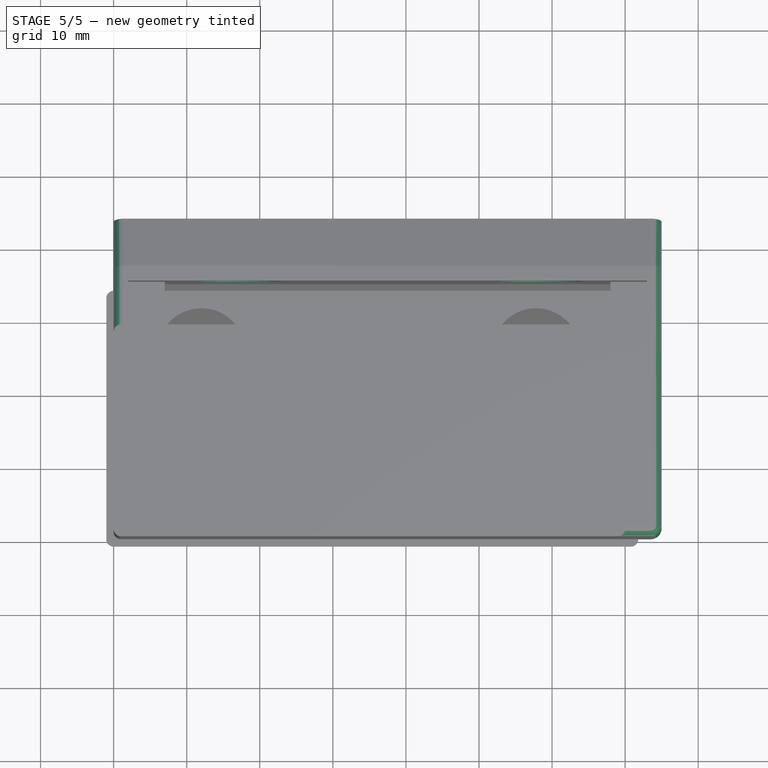
[diagram: stage 5 of 5 — top view after this stage's code; geometry added in this stage tinted green]
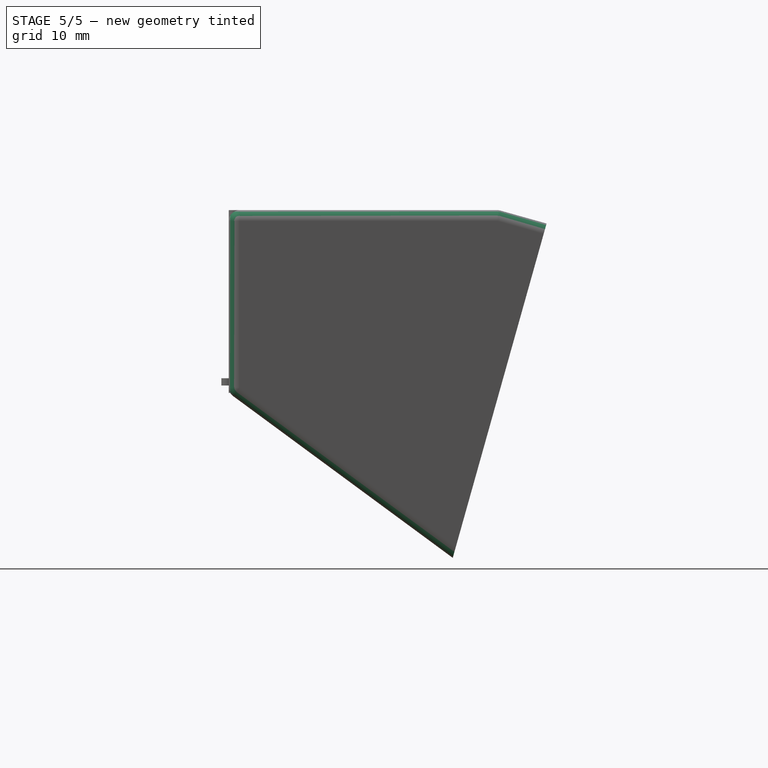
[diagram: stage 5 of 5 — right view after this stage's code; geometry added in this stage tinted green]
FEATURE [PartDesign::Pocket] Pocket001
  BaseFeature = -> Pocket
  Direction = (0,-0.962784,0.27027)
  Length = 27
  Length2 = -2
  Profile = -> Sketch003 [Edge5,Edge6]
  ReferenceAxis = -> Sketch003 [N_Axis]
  Refine = true
  Suppressed = false
  Type = 4
FEATURE [Sketcher::SketchObject] Sketch006
  ArcFitTolerance = 1e-06
  AttachmentSupport = -> [Pocket001]
  ExternalGeometry = -> [Pocket001]
  ExternalTypes = [0,0]
  FullyConstrained = true
  MakeInternals = false
  MapMode = 5
  Placement = pos=(75,0,0) rot=(0.57735,0.57735,0.57735;2.0944rad)
  sketch-geometry (3):
    g0: LineSegment StartX=3.37255 StartY=0 StartZ=0 EndX=34.9227 EndY=0 EndZ=0
    g1: LineSegment StartX=34.9227 StartY=0 StartZ=0 EndX=29.5173 EndY=-19.2557 EndZ=0
    g2: LineSegment StartX=29.5173 StartY=-19.2557 StartZ=0 EndX=3.37255 EndY=0 EndZ=0
  constraints (6):
    c: Coincident(g-3,g0)
    c: Coincident(g0,g-4)
    c: Coincident(g0,g1)
    c: Coincident(g1,g-4)
    c: Coincident(g1,g2)
    c: Coincident(g2,g0)
FEATURE [PartDesign::Pad] Pad005
  BaseFeature = -> Pocket001
  Direction = (1,0,0)
  Length = 2
  Length2 = 10
  Profile = -> Sketch006
  ReferenceAxis = -> Sketch006 [N_Axis]
  Refine = true
  Reversed = true
  Suppressed = false
  Type = 0
FEATURE [PartDesign::Fillet] Fillet
  Base = -> Pad005 [Edge61,Edge62,Edge60,Edge40,Edge42,Edge65,Edge64,Edge75,Edge67,Edge39,Edge41]
  BaseFeature = -> Pad005
  Radius = 1.5
  Refine = true
  SupportTransform = false
  Suppressed = false
  UseAllEdges = false
FEATURE [PartDesign::Chamfer] Chamfer001
  Angle = 45
  Base = -> Fillet [Edge48,Edge49]
  BaseFeature = -> Fillet
  ChamferType = 0
  FlipDirection = false
  Refine = true
  Size = 1
  Size2 = 1
  SupportTransform = false
  Suppressed = false
  UseAllEdges = false
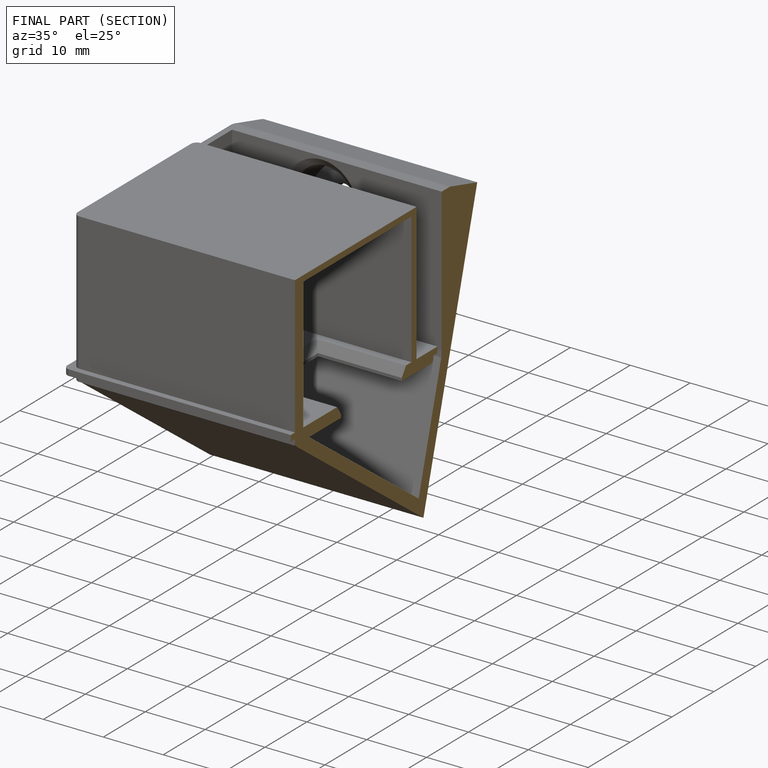
[diagram: finished part — half-section view (interior)]
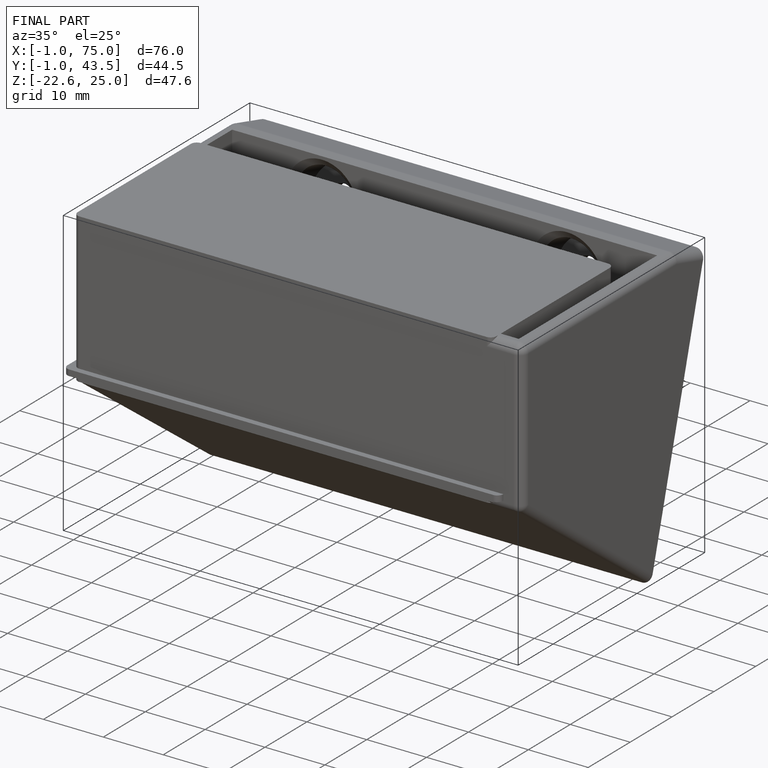
[diagram: finished part — iso view with bounding-box wireframe]
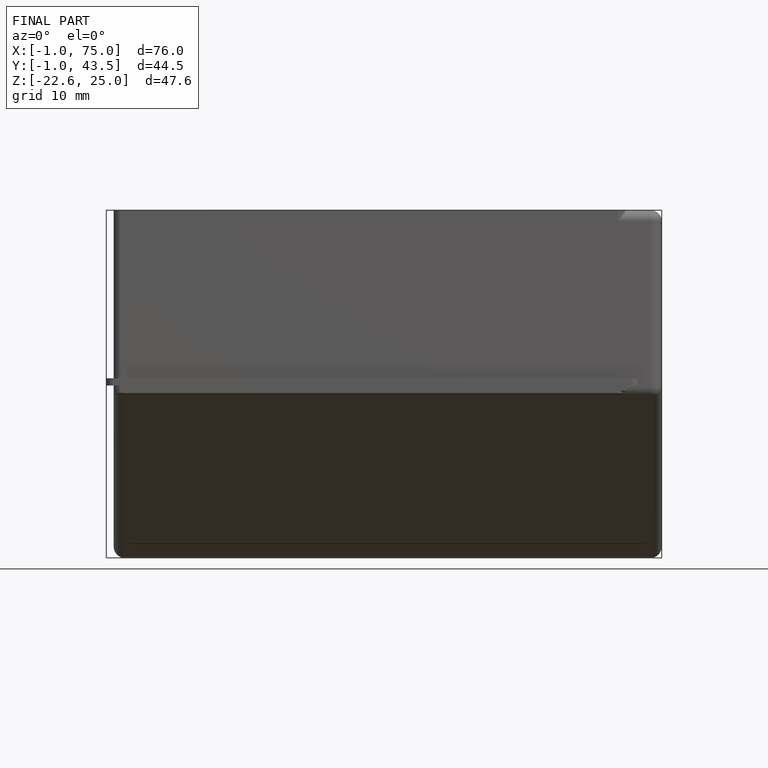
[diagram: finished part — front view with bounding-box wireframe]
